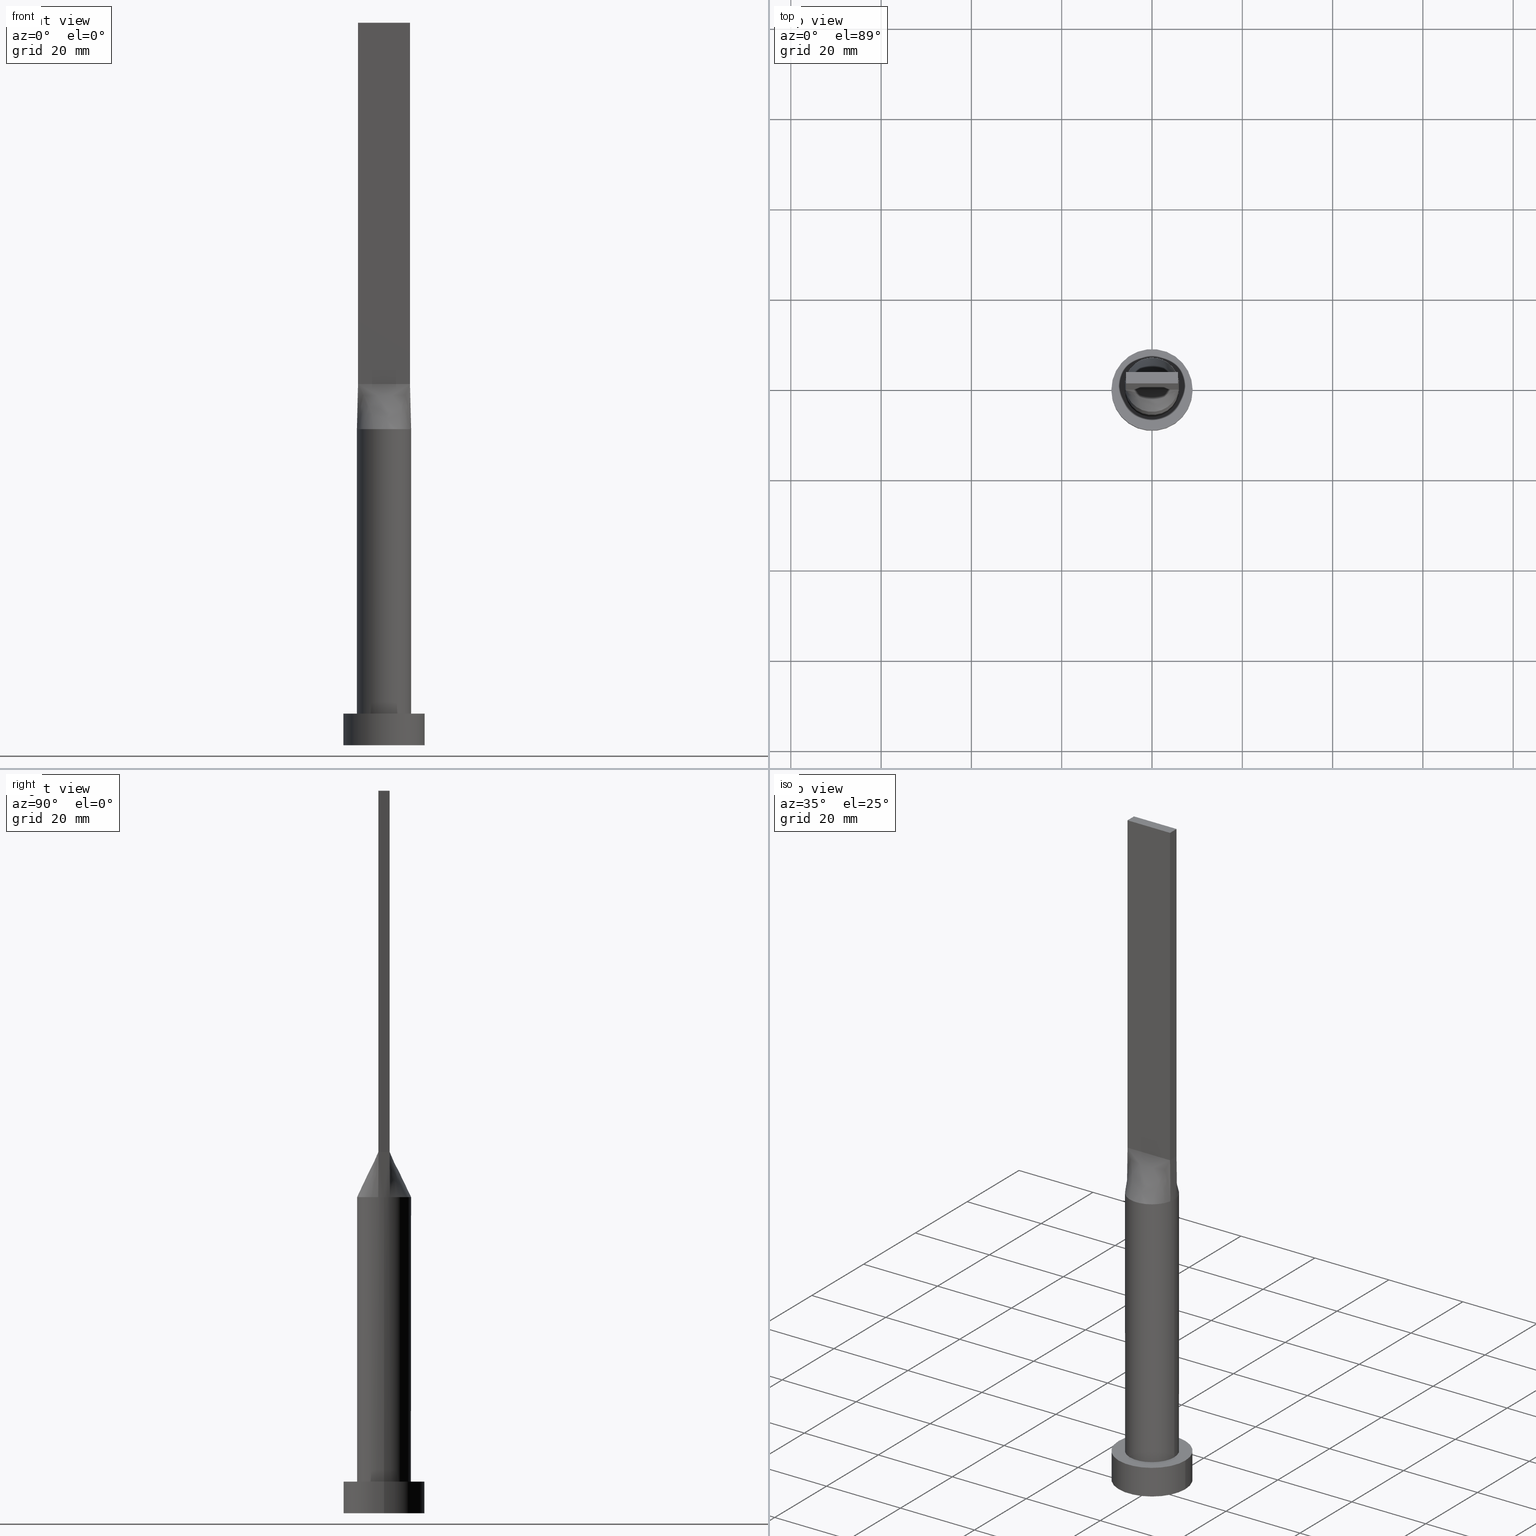
[diagram: canonical four-view strip — front | top / right | iso, engineering-drawing reading convention]
A machine part, canonical four-view strip (front | top / right | iso — engineering-drawing reading convention). The complete STEP part file that produces these views, byte-faithful:
ISO-10303-21;
HEADER;
FILE_DESCRIPTION (( 'STEP AP203' ),
    '1' );
FILE_NAME ('f43a.STEP',
    '2023-02-13T08:33:56',
    ( '' ),
    ( '' ),
    'SwSTEP 2.0',
    'SolidWorks 2019',
    '' );
FILE_SCHEMA (( 'CONFIG_CONTROL_DESIGN' ));
ENDSEC;

DATA;
#1 = CARTESIAN_POINT ( 'NONE',  ( -0.4029827085191223790, 5.999999999999998224, 70.00000000000000000 ) ) ;
#2 = ORIENTED_EDGE ( 'NONE', *, *, #207, .F. ) ;
#3 = APPROVAL_DATE_TIME ( #512, #476 ) ;
#4 = CARTESIAN_POINT ( 'NONE',  ( -4.659826596530312948, 3.842755878357679844, 69.99999999999998579 ) ) ;
#5 = APPROVAL_PERSON_ORGANIZATION ( #486, #489, #35 ) ;
#6 = CARTESIAN_POINT ( 'NONE',  ( -5.038190104264874236, 3.311355329404293446, 70.00000000000001421 ) ) ;
#7 = ADVANCED_FACE ( 'NONE', ( #343 ), #533, .F. ) ;
#8 = LINE ( 'NONE', #193, #594 ) ;
#9 = CYLINDRICAL_SURFACE ( 'NONE', #461, 9.000000000000000000 ) ;
#10 = CARTESIAN_POINT ( 'NONE',  ( 6.000000000000000888, 0.4297636735037115296, 69.99999999999998579 ) ) ;
#11 = ORIENTED_EDGE ( 'NONE', *, *, #219, .F. ) ;
#12 = FACE_OUTER_BOUND ( 'NONE', #76, .T. ) ;
#13 = ADVANCED_FACE ( 'NONE', ( #12 ), #200, .F. ) ;
#14 = CARTESIAN_POINT ( 'NONE',  ( 5.750000000000000000, -1.249999999999999778, 80.00000000000000000 ) ) ;
#15 = CARTESIAN_POINT ( 'NONE',  ( -6.000000000000000888, -3.688698462745542764E-16, 70.00000000000000000 ) ) ;
#16 = FACE_OUTER_BOUND ( 'NONE', #287, .T. ) ;
#17 = CARTESIAN_POINT ( 'NONE',  ( 0.000000000000000000, 0.000000000000000000, 7.000000000000000000 ) ) ;
#18 = ORIENTED_EDGE ( 'NONE', *, *, #288, .F. ) ;
#19 = CARTESIAN_POINT ( 'NONE',  ( 0.000000000000000000, 0.000000000000000000, 7.000000000000000000 ) ) ;
#20 =( NAMED_UNIT ( * ) PLANE_ANGLE_UNIT ( ) SI_UNIT ( $, .RADIAN. ) );
#21 = CARTESIAN_POINT ( 'NONE',  ( 6.000000000000000888, 7.347880794884120722E-16, 70.00000000000000000 ) ) ;
#22 = ADVANCED_FACE ( 'NONE', ( #432, #246 ), #563, .T. ) ;
#23 = FACE_OUTER_BOUND ( 'NONE', #138, .T. ) ;
#24 = VERTEX_POINT ( 'NONE', #566 ) ;
#25 = DIRECTION ( 'NONE',  ( 1.000000000000000000, -5.656706986880892860E-17, 0.000000000000000000 ) ) ;
#26 = CARTESIAN_POINT ( 'NONE',  ( -4.659826596530312948, 3.842755878357679844, 69.99999999999998579 ) ) ;
#27 = AXIS2_PLACEMENT_3D ( 'NONE', #105, #68, #206 ) ;
#28 = PERSON_AND_ORGANIZATION_ROLE ( 'design_owner' ) ;
#29 = CC_DESIGN_APPROVAL ( #489, ( #394 ) ) ;
#30 = DIRECTION ( 'NONE',  ( -0.000000000000000000, -0.000000000000000000, -1.000000000000000000 ) ) ;
#31 = DIRECTION ( 'NONE',  ( -1.000000000000000000, 5.656706986880892860E-17, 0.000000000000000000 ) ) ;
#32 = DIRECTION ( 'NONE',  ( 1.000000000000000000, 0.000000000000000000, 0.000000000000000000 ) ) ;
#33 = CARTESIAN_POINT ( 'NONE',  ( 5.863058183536806744, 1.274577865986262104, 70.00000000000000000 ) ) ;
#34 = CARTESIAN_POINT ( 'NONE',  ( -3.833333333333333481, 1.250000000000000222, 79.99999999999998579 ) ) ;
#35 = APPROVAL_ROLE ( '' ) ;
#36 = CARTESIAN_POINT ( 'NONE',  ( 5.038190104264874236, -3.311355329404293890, 70.00000000000002842 ) ) ;
#37 = CARTESIAN_POINT ( 'NONE',  ( -5.750000000000000000, 1.250000000000000222, 80.00000000000000000 ) ) ;
#38 = APPROVAL_STATUS ( 'not_yet_approved' ) ;
#39 = CARTESIAN_POINT ( 'NONE',  ( -5.750000000000000000, -0.4166666666666609675, 79.99999999999998579 ) ) ;
#40 = CARTESIAN_POINT ( 'NONE',  ( 4.791666666666666075, 1.250000000000000222, 79.99999999999998579 ) ) ;
#41 = CARTESIAN_POINT ( 'NONE',  ( -5.586898165904732316, 2.266054396544148197, 70.00000000000001421 ) ) ;
#42 = EDGE_CURVE ( 'NONE', #53, #136, #576, .T. ) ;
#43 = VECTOR ( 'NONE', #482, 1000.000000000000000 ) ;
#44 = CARTESIAN_POINT ( 'NONE',  ( -5.806529091768402928, -1.262288932993130386, 75.00000000000001421 ) ) ;
#45 = CARTESIAN_POINT ( 'NONE',  ( -1.966519853258819506, -5.681792876789066860, 70.00000000000002842 ) ) ;
#46 = CC_DESIGN_PERSON_AND_ORGANIZATION_ASSIGNMENT ( #473, #28, ( #508 ) ) ;
#47 = ORIENTED_EDGE ( 'NONE', *, *, #234, .T. ) ;
#48 = COORDINATED_UNIVERSAL_TIME_OFFSET ( 1, 0, .AHEAD. ) ;
#49 = CARTESIAN_POINT ( 'NONE',  ( 1.916666666666664076, 1.250000000000000222, 79.99999999999998579 ) ) ;
#50 = DIRECTION ( 'NONE',  ( 0.000000000000000000, 0.000000000000000000, 1.000000000000000000 ) ) ;
#51 = AXIS2_PLACEMENT_3D ( 'NONE', #262, #498, #353 ) ;
#52 = CARTESIAN_POINT ( 'NONE',  ( 0.000000000000000000, 0.000000000000000000, 70.00000000000000000 ) ) ;
#53 = VERTEX_POINT ( 'NONE', #471 ) ;
#54 = CARTESIAN_POINT ( 'NONE',  ( -5.750000000000000000, -1.249999999999999112, 160.0000000000000000 ) ) ;
#55 = CC_DESIGN_PERSON_AND_ORGANIZATION_ASSIGNMENT ( #319, #302, ( #575 ) ) ;
#56 = CARTESIAN_POINT ( 'NONE',  ( 1.587717880441007479, 5.799853445840305710, 69.99999999999998579 ) ) ;
#57 = VECTOR ( 'NONE', #552, 1000.000000000000000 ) ;
#58 = CARTESIAN_POINT ( 'NONE',  ( -5.863058287509749888, 1.274577880478287017, 70.00000000000000000 ) ) ;
#59 = ORIENTED_EDGE ( 'NONE', *, *, #64, .T. ) ;
#60 = CARTESIAN_POINT ( 'NONE',  ( 5.863058287509796074, -1.274577880478293901, 70.00000000000000000 ) ) ;
#61 = B_SPLINE_SURFACE_WITH_KNOTS ( 'NONE', 3, 1, ( 
 ( #33, #169 ),
 ( #545, #395 ),
 ( #221, #40 ),
 ( #585, #129 ),
 ( #349, #170 ),
 ( #311, #88 ),
 ( #268, #49 ),
 ( #406, #398 ),
 ( #597, #320 ),
 ( #592, #180 ),
 ( #139, #506 ),
 ( #176, #75 ),
 ( #354, #307 ),
 ( #70, #440 ),
 ( #161, #530 ),
 ( #113, #296 ),
 ( #491, #479 ),
 ( #26, #213 ),
 ( #386, #34 ),
 ( #41, #579 ),
 ( #166, #345 ),
 ( #301, #37 ) ),
 .UNSPECIFIED., .F., .F., .F.,
 ( 4, 2, 2, 2, 2, 2, 2, 2, 2, 2, 4 ),
 ( 2, 2 ),
 ( 0.000000000000000000, 0.1249999999999999722, 0.2499999999999999445, 0.3749999999999999445, 0.4374999999999999445, 0.4999999999999998890, 0.5624999999999998890, 0.6249999999999998890, 0.7499999999999997780, 0.8749999999999998890, 1.000000000000000000 ),
 ( 0.000000000000000000, 1.000000000000000000 ),
 .UNSPECIFIED. ) ;
#62 = APPROVAL_STATUS ( 'not_yet_approved' ) ;
#63 = ORIENTED_EDGE ( 'NONE', *, *, #463, .T. ) ;
#64 = EDGE_CURVE ( 'NONE', #447, #131, #66, .T. ) ;
#65 = CARTESIAN_POINT ( 'NONE',  ( 5.750000000000000000, 0.4166666666666690721, 79.99999999999998579 ) ) ;
#66 = CIRCLE ( 'NONE', #417, 6.000000000000000888 ) ;
#67 = APPROVAL_PERSON_ORGANIZATION ( #128, #476, #493 ) ;
#68 = DIRECTION ( 'NONE',  ( 0.000000000000000000, 0.000000000000000000, 1.000000000000000000 ) ) ;
#69 = ORIENTED_EDGE ( 'NONE', *, *, #242, .F. ) ;
#70 = CARTESIAN_POINT ( 'NONE',  ( -1.587717880441007035, 5.799853445840308375, 69.99999999999998579 ) ) ;
#71 = ADVANCED_FACE ( 'NONE', ( #334 ), #524, .F. ) ;
#72 = FACE_OUTER_BOUND ( 'NONE', #562, .T. ) ;
#73 = ORIENTED_EDGE ( 'NONE', *, *, #219, .T. ) ;
#74 = DIRECTION ( 'NONE',  ( 1.000000000000000000, 0.000000000000000000, 0.000000000000000000 ) ) ;
#75 = CARTESIAN_POINT ( 'NONE',  ( -0.2395833333333362847, 1.250000000000000222, 80.00000000000000000 ) ) ;
#76 = EDGE_LOOP ( 'NONE', ( #538, #560 ) ) ;
#77 = CARTESIAN_POINT ( 'NONE',  ( 5.806529091768402928, 1.262288932993131496, 75.00000000000001421 ) ) ;
#78 = AXIS2_PLACEMENT_3D ( 'NONE', #195, #248, #468 ) ;
#79 = COORDINATED_UNIVERSAL_TIME_OFFSET ( 1, 0, .AHEAD. ) ;
#80 = CARTESIAN_POINT ( 'NONE',  ( 5.806529091768402928, -1.262288932993132828, 75.00000000000001421 ) ) ;
#81 = PLANE ( 'NONE',  #315 ) ;
#82 = ORIENTED_EDGE ( 'NONE', *, *, #143, .F. ) ;
#83 = DIRECTION ( 'NONE',  ( -0.01130506171853812650, -0.002457622112725661723, 0.9999330755971076456 ) ) ;
#84 = CALENDAR_DATE ( 2023, 13, 2 ) ;
#85 = EDGE_CURVE ( 'NONE', #283, #90, #261, .T. ) ;
#86 = CARTESIAN_POINT ( 'NONE',  ( -6.000000000000000888, 0.4297636735037124733, 69.99999999999998579 ) ) ;
#87 = ORIENTED_EDGE ( 'NONE', *, *, #551, .T. ) ;
#88 = CARTESIAN_POINT ( 'NONE',  ( 2.395833333333330817, 1.250000000000000222, 79.99999999999998579 ) ) ;
#89 = EDGE_CURVE ( 'NONE', #381, #53, #393, .T. ) ;
#90 = VERTEX_POINT ( 'NONE', #106 ) ;
#91 = CALENDAR_DATE ( 2023, 13, 2 ) ;
#92 = SHAPE_DEFINITION_REPRESENTATION ( #522, #427 ) ;
#93 = FACE_OUTER_BOUND ( 'NONE', #510, .T. ) ;
#94 = VECTOR ( 'NONE', #559, 1000.000000000000000 ) ;
#95 = DIRECTION ( 'NONE',  ( -1.000000000000000000, 0.000000000000000000, 0.000000000000000000 ) ) ;
#96 = CARTESIAN_POINT ( 'NONE',  ( 1.587717880441006368, -5.799853445840308375, 69.99999999999998579 ) ) ;
#97 = APPROVAL ( #62, 'NEUR�EN�' ) ;
#98 = DIRECTION ( 'NONE',  ( 1.000000000000000000, 0.000000000000000000, 0.000000000000000000 ) ) ;
#99 = DIRECTION ( 'NONE',  ( -0.000000000000000000, -0.000000000000000000, -1.000000000000000000 ) ) ;
#100 = VECTOR ( 'NONE', #25, 1000.000000000000000 ) ;
#101 = AXIS2_PLACEMENT_3D ( 'NONE', #531, #425, #430 ) ;
#102 = CARTESIAN_POINT ( 'NONE',  ( 5.586898165904734093, 2.266054396544147309, 70.00000000000000000 ) ) ;
#103 = EDGE_CURVE ( 'NONE', #275, #291, #424, .T. ) ;
#104 = CARTESIAN_POINT ( 'NONE',  ( 5.750000000000000000, 0.8333333333333350357, 79.99999999999998579 ) ) ;
#105 = CARTESIAN_POINT ( 'NONE',  ( 0.000000000000000000, 0.000000000000000000, 0.000000000000000000 ) ) ;
#106 = CARTESIAN_POINT ( 'NONE',  ( 6.000000000000000888, 7.347880794884120722E-16, 7.000000000000000000 ) ) ;
#107 = CARTESIAN_POINT ( 'NONE',  ( 5.750000000000000000, 1.250000000000000222, 80.00000000000000000 ) ) ;
#108 = DIRECTION ( 'NONE',  ( -0.01130506171853803803, 0.002457622112726073286, 0.9999330755971076456 ) ) ;
#109 = AXIS2_PLACEMENT_3D ( 'NONE', #518, #99, #408 ) ;
#110 = DIRECTION ( 'NONE',  ( 0.000000000000000000, -0.000000000000000000, -1.000000000000000000 ) ) ;
#111 = APPLICATION_PROTOCOL_DEFINITION ( 'international standard', 'config_control_design', 1994, #203 ) ;
#112 = LINE ( 'NONE', #21, #43 ) ;
#113 = CARTESIAN_POINT ( 'NONE',  ( -3.037647739454304663, 5.231880992812857123, 70.00000000000002842 ) ) ;
#114 = EDGE_CURVE ( 'NONE', #24, #275, #254, .T. ) ;
#115 = PERSON_AND_ORGANIZATION ( #336, #496 ) ;
#116 = DIRECTION ( 'NONE',  ( 5.656706986880892860E-17, 1.000000000000000000, -0.000000000000000000 ) ) ;
#117 = VERTEX_POINT ( 'NONE', #429 ) ;
#118 = CARTESIAN_POINT ( 'NONE',  ( 0.000000000000000000, 0.000000000000000000, 70.00000000000000000 ) ) ;
#119 = DIRECTION ( 'NONE',  ( -0.000000000000000000, -0.000000000000000000, -1.000000000000000000 ) ) ;
#120 = DIRECTION ( 'NONE',  ( 0.000000000000000000, 0.000000000000000000, 1.000000000000000000 ) ) ;
#121 = CARTESIAN_POINT ( 'NONE',  ( -4.659826596530313836, -3.842755878357677179, 70.00000000000000000 ) ) ;
#122 = ORIENTED_EDGE ( 'NONE', *, *, #457, .F. ) ;
#123 = CARTESIAN_POINT ( 'NONE',  ( -5.750000000000000000, -1.249999999999999112, 160.0000000000000000 ) ) ;
#124 = CIRCLE ( 'NONE', #452, 6.000000000000000888 ) ;
#125 = ADVANCED_FACE ( 'NONE', ( #16 ), #9, .T. ) ;
#126 = CARTESIAN_POINT ( 'NONE',  ( -6.000000000000000888, -0.4297636735037110300, 69.99999999999998579 ) ) ;
#127 = CARTESIAN_POINT ( 'NONE',  ( 5.863058183536806744, 1.274577865986262326, 70.00000000000000000 ) ) ;
#128 = PERSON_AND_ORGANIZATION ( #336, #496 ) ;
#129 = CARTESIAN_POINT ( 'NONE',  ( 3.833333333333331705, 1.250000000000000222, 79.99999999999998579 ) ) ;
#130 = CARTESIAN_POINT ( 'NONE',  ( 0.9583333333333325932, -1.249999999999999556, 79.99999999999998579 ) ) ;
#131 = VERTEX_POINT ( 'NONE', #60 ) ;
#132 = CARTESIAN_POINT ( 'NONE',  ( -5.750000000000000000, -1.249999999999999334, 80.00000000000000000 ) ) ;
#133 = ADVANCED_FACE ( 'NONE', ( #373 ), #61, .T. ) ;
#134 = AXIS2_PLACEMENT_3D ( 'NONE', #141, #145, #95 ) ;
#135 = CC_DESIGN_SECURITY_CLASSIFICATION ( #394, ( #575 ) ) ;
#136 = VERTEX_POINT ( 'NONE', #485 ) ;
#137 = B_SPLINE_SURFACE_WITH_KNOTS ( 'NONE', 3, 1, ( 
 ( #571, #346 ),
 ( #253, #216 ),
 ( #294, #581 ),
 ( #569, #537 ),
 ( #121, #204 ),
 ( #378, #163 ),
 ( #342, #272 ),
 ( #45, #358 ),
 ( #409, #600 ),
 ( #500, #515 ),
 ( #509, #399 ),
 ( #503, #454 ),
 ( #364, #236 ),
 ( #96, #130 ),
 ( #314, #549 ),
 ( #263, #439 ),
 ( #218, #265 ),
 ( #389, #443 ),
 ( #36, #577 ),
 ( #420, #147 ),
 ( #565, #333 ),
 ( #480, #14 ) ),
 .UNSPECIFIED., .F., .F., .F.,
 ( 4, 2, 2, 2, 2, 2, 2, 2, 2, 2, 4 ),
 ( 2, 2 ),
 ( 0.000000000000000000, 0.1250000000000000278, 0.2500000000000000555, 0.3750000000000001110, 0.4375000000000000555, 0.5000000000000000000, 0.5625000000000000000, 0.6250000000000000000, 0.7499999999999998890, 0.8750000000000000000, 1.000000000000000000 ),
 ( 0.000000000000000000, 1.000000000000000000 ),
 .UNSPECIFIED. ) ;
#138 = EDGE_LOOP ( 'NONE', ( #164, #483, #186, #441 ) ) ;
#139 = CARTESIAN_POINT ( 'NONE',  ( 0.4029827085191226566, 5.999999999999999112, 70.00000000000000000 ) ) ;
#140 = CARTESIAN_POINT ( 'NONE',  ( -5.750000000000000000, 1.250000000000000222, 160.0000000000000000 ) ) ;
#141 = CARTESIAN_POINT ( 'NONE',  ( 0.000000000000000000, 0.000000000000000000, 70.00000000000000000 ) ) ;
#142 = AXIS2_PLACEMENT_3D ( 'NONE', #19, #292, #572 ) ;
#143 = EDGE_CURVE ( 'NONE', #153, #258, #540, .T. ) ;
#144 = ORIENTED_EDGE ( 'NONE', *, *, #340, .F. ) ;
#145 = DIRECTION ( 'NONE',  ( -0.000000000000000000, -0.000000000000000000, -1.000000000000000000 ) ) ;
#146 = CARTESIAN_POINT ( 'NONE',  ( -5.586898165904732316, 2.266054396544148197, 70.00000000000001421 ) ) ;
#147 = CARTESIAN_POINT ( 'NONE',  ( 4.791666666666666075, -1.249999999999999778, 79.99999999999998579 ) ) ;
#148 = EDGE_CURVE ( 'NONE', #501, #275, #583, .T. ) ;
#149 = CARTESIAN_POINT ( 'NONE',  ( 3.037647739454305995, 5.231880992812856235, 70.00000000000001421 ) ) ;
#150 = CIRCLE ( 'NONE', #367, 6.000000000000000888 ) ;
#151 = ORIENTED_EDGE ( 'NONE', *, *, #192, .T. ) ;
#152 = MECHANICAL_CONTEXT ( 'NONE', #460, 'mechanical' ) ;
#153 = VERTEX_POINT ( 'NONE', #127 ) ;
#154 = DIRECTION ( 'NONE',  ( -0.000000000000000000, -0.000000000000000000, -1.000000000000000000 ) ) ;
#155 = LINE ( 'NONE', #337, #350 ) ;
#156 = ORIENTED_EDGE ( 'NONE', *, *, #415, .T. ) ;
#157 = CARTESIAN_POINT ( 'NONE',  ( -5.750000000000000000, -1.249999999999999112, 80.00000000000000000 ) ) ;
#158 = CC_DESIGN_PERSON_AND_ORGANIZATION_ASSIGNMENT ( #237, #456, ( #536 ) ) ;
#159 = AXIS2_PLACEMENT_3D ( 'NONE', #160, #209, #110 ) ;
#160 = CARTESIAN_POINT ( 'NONE',  ( 5.750000000000000000, 1.250000000000000222, 160.0000000000000000 ) ) ;
#161 = CARTESIAN_POINT ( 'NONE',  ( -1.966519853258818173, 5.681792876789067748, 70.00000000000002842 ) ) ;
#162 = CARTESIAN_POINT ( 'NONE',  ( 5.750000000000000000, -1.249999999999999778, 80.00000000000000000 ) ) ;
#163 = CARTESIAN_POINT ( 'NONE',  ( -2.395833333333333037, -1.249999999999999112, 79.99999999999998579 ) ) ;
#164 = ORIENTED_EDGE ( 'NONE', *, *, #103, .T. ) ;
#165 = DIRECTION ( 'NONE',  ( 0.000000000000000000, -1.000000000000000000, 0.000000000000000000 ) ) ;
#166 = CARTESIAN_POINT ( 'NONE',  ( -5.759267569818392829, 1.752014689090956256, 70.00000000000000000 ) ) ;
#167 = CARTESIAN_POINT ( 'NONE',  ( -5.750000000000000000, 1.250000000000000222, 80.00000000000000000 ) ) ;
#168 = ORIENTED_EDGE ( 'NONE', *, *, #400, .F. ) ;
#169 = CARTESIAN_POINT ( 'NONE',  ( 5.750000000000000000, 1.250000000000000222, 80.00000000000000000 ) ) ;
#170 = CARTESIAN_POINT ( 'NONE',  ( 3.354166666666665186, 1.250000000000000222, 79.99999999999998579 ) ) ;
#171 = DIRECTION ( 'NONE',  ( -0.000000000000000000, -0.000000000000000000, -1.000000000000000000 ) ) ;
#172 = VECTOR ( 'NONE', #368, 1000.000000000000114 ) ;
#173 = APPROVAL_PERSON_ORGANIZATION ( #115, #97, #247 ) ;
#174 = DIRECTION ( 'NONE',  ( 1.000000000000000000, 0.000000000000000000, 0.000000000000000000 ) ) ;
#175 = EDGE_LOOP ( 'NONE', ( #467, #322 ) ) ;
#176 = CARTESIAN_POINT ( 'NONE',  ( -0.4029827085191223790, 5.999999999999998224, 70.00000000000000000 ) ) ;
#177 = CIRCLE ( 'NONE', #27, 9.000000000000000000 ) ;
#178 = ORIENTED_EDGE ( 'NONE', *, *, #85, .T. ) ;
#179 = PERSON_AND_ORGANIZATION ( #336, #496 ) ;
#180 = CARTESIAN_POINT ( 'NONE',  ( 0.4791666666666637986, 1.250000000000000222, 79.99999999999998579 ) ) ;
#181 = LINE ( 'NONE', #361, #445 ) ;
#182 = EDGE_LOOP ( 'NONE', ( #455, #365, #264, #82 ) ) ;
#183 = SECURITY_CLASSIFICATION_LEVEL ( 'unclassified' ) ;
#184 = ADVANCED_FACE ( 'NONE', ( #492 ), #317, .T. ) ;
#185 = CARTESIAN_POINT ( 'NONE',  ( 5.750000000000000000, -1.249999999999999778, 160.0000000000000000 ) ) ;
#186 = ORIENTED_EDGE ( 'NONE', *, *, #463, .F. ) ;
#187 = DATE_AND_TIME ( #274, #199 ) ;
#188 = CARTESIAN_POINT ( 'NONE',  ( 0.000000000000000000, 0.000000000000000000, 70.00000000000000000 ) ) ;
#189 = VECTOR ( 'NONE', #214, 1000.000000000000000 ) ;
#190 = LOCAL_TIME ( 9, 33, 56.00000000000000000, #505 ) ;
#191 = CARTESIAN_POINT ( 'NONE',  ( -5.863058287509749888, 1.274577880478287017, 70.00000000000000000 ) ) ;
#192 = EDGE_CURVE ( 'NONE', #464, #153, #224, .T. ) ;
#193 = CARTESIAN_POINT ( 'NONE',  ( 5.750000000000000000, 1.250000000000000222, 80.00000000000000000 ) ) ;
#194 = ORIENTED_EDGE ( 'NONE', *, *, #114, .F. ) ;
#195 = CARTESIAN_POINT ( 'NONE',  ( 0.000000000000000000, 0.000000000000000000, 0.000000000000000000 ) ) ;
#196 = FACE_OUTER_BOUND ( 'NONE', #208, .T. ) ;
#197 = VECTOR ( 'NONE', #387, 1000.000000000000000 ) ;
#198 = ORIENTED_EDGE ( 'NONE', *, *, #568, .F. ) ;
#199 = LOCAL_TIME ( 9, 33, 56.00000000000000000, #79 ) ;
#200 = PLANE ( 'NONE',  #78 ) ;
#201 = CARTESIAN_POINT ( 'NONE',  ( 5.750000000000000000, -0.4166666666666642427, 79.99999999999998579 ) ) ;
#202 = DIRECTION ( 'NONE',  ( -1.000000000000000000, 0.000000000000000000, 0.000000000000000000 ) ) ;
#203 = APPLICATION_CONTEXT ( 'configuration controlled 3d designs of mechanical parts and assemblies' ) ;
#204 = CARTESIAN_POINT ( 'NONE',  ( -3.354166666666666963, -1.249999999999999112, 79.99999999999998579 ) ) ;
#205 = DIRECTION ( 'NONE',  ( 1.000000000000000000, 0.000000000000000000, -0.000000000000000000 ) ) ;
#206 = DIRECTION ( 'NONE',  ( 1.000000000000000000, 0.000000000000000000, 0.000000000000000000 ) ) ;
#207 = EDGE_CURVE ( 'NONE', #53, #381, #407, .T. ) ;
#208 = EDGE_LOOP ( 'NONE', ( #372, #151, #267, #410, #401 ) ) ;
#209 = DIRECTION ( 'NONE',  ( 0.000000000000000000, -1.000000000000000000, 0.000000000000000000 ) ) ;
#210 = ORIENTED_EDGE ( 'NONE', *, *, #449, .F. ) ;
#211 = VECTOR ( 'NONE', #165, 1000.000000000000000 ) ;
#212 = CARTESIAN_POINT ( 'NONE',  ( -9.000000000000000000, 0.000000000000000000, 7.000000000000000000 ) ) ;
#213 = CARTESIAN_POINT ( 'NONE',  ( -3.354166666666666963, 1.250000000000000222, 79.99999999999998579 ) ) ;
#214 = DIRECTION ( 'NONE',  ( 0.000000000000000000, -1.000000000000000000, 0.000000000000000000 ) ) ;
#215 = CARTESIAN_POINT ( 'NONE',  ( -6.000000000000000888, 0.000000000000000000, 7.000000000000000000 ) ) ;
#216 = CARTESIAN_POINT ( 'NONE',  ( -5.270833333333333925, -1.249999999999999112, 80.00000000000000000 ) ) ;
#217 = ORIENTED_EDGE ( 'NONE', *, *, #547, .T. ) ;
#218 = CARTESIAN_POINT ( 'NONE',  ( 3.660567483996338023, -4.804269179125219225, 70.00000000000001421 ) ) ;
#219 = EDGE_CURVE ( 'NONE', #275, #447, #544, .T. ) ;
#220 = CARTESIAN_POINT ( 'NONE',  ( 0.000000000000000000, 0.000000000000000000, 70.00000000000000000 ) ) ;
#221 = CARTESIAN_POINT ( 'NONE',  ( 5.586898165904734093, 2.266054396544147309, 70.00000000000000000 ) ) ;
#222 = DIRECTION ( 'NONE',  ( 0.000000000000000000, 0.000000000000000000, 1.000000000000000000 ) ) ;
#223 = CARTESIAN_POINT ( 'NONE',  ( -5.863058183536806744, 1.274577865986262770, 70.00000000000000000 ) ) ;
#224 = CIRCLE ( 'NONE', #241, 6.000000000000000888 ) ;
#225 = ORIENTED_EDGE ( 'NONE', *, *, #103, .F. ) ;
#226 = DIRECTION ( 'NONE',  ( -1.000000000000000000, 0.000000000000000000, 0.000000000000000000 ) ) ;
#227 = EDGE_CURVE ( 'NONE', #117, #419, #390, .T. ) ;
#228 = ORIENTED_EDGE ( 'NONE', *, *, #227, .F. ) ;
#229 = DATE_AND_TIME ( #91, #446 ) ;
#230 = VECTOR ( 'NONE', #591, 1000.000000000000000 ) ;
#231 = DIRECTION ( 'NONE',  ( 1.000000000000000000, 0.000000000000000000, 0.000000000000000000 ) ) ;
#232 = ORIENTED_EDGE ( 'NONE', *, *, #356, .F. ) ;
#233 = PERSON_AND_ORGANIZATION ( #336, #496 ) ;
#234 = EDGE_CURVE ( 'NONE', #497, #136, #269, .T. ) ;
#235 = CARTESIAN_POINT ( 'NONE',  ( -5.806529091768402928, 1.262288932993132606, 75.00000000000001421 ) ) ;
#236 = CARTESIAN_POINT ( 'NONE',  ( 0.4791666666666659635, -1.249999999999999556, 79.99999999999998579 ) ) ;
#237 = PERSON_AND_ORGANIZATION ( #336, #496 ) ;
#238 = MANIFOLD_SOLID_BREP ( 'P�idat vysunut�m5', #338 ) ;
#239 = FACE_OUTER_BOUND ( 'NONE', #277, .T. ) ;
#240 = CARTESIAN_POINT ( 'NONE',  ( 1.966519853258819062, 5.681792876789066860, 70.00000000000000000 ) ) ;
#241 = AXIS2_PLACEMENT_3D ( 'NONE', #220, #222, #174 ) ;
#242 = EDGE_CURVE ( 'NONE', #117, #258, #539, .T. ) ;
#243 = ORIENTED_EDGE ( 'NONE', *, *, #298, .T. ) ;
#244 = PLANE ( 'NONE',  #305 ) ;
#245 = EDGE_LOOP ( 'NONE', ( #450, #435, #347, #232, #404, #178 ) ) ;
#246 = FACE_OUTER_BOUND ( 'NONE', #546, .T. ) ;
#247 = APPROVAL_ROLE ( '' ) ;
#248 = DIRECTION ( 'NONE',  ( 0.000000000000000000, 0.000000000000000000, 1.000000000000000000 ) ) ;
#249 = DIRECTION ( 'NONE',  ( 0.000000000000000000, 0.000000000000000000, 1.000000000000000000 ) ) ;
#250 = DIRECTION ( 'NONE',  ( -0.000000000000000000, -0.000000000000000000, -1.000000000000000000 ) ) ;
#251 = AXIS2_PLACEMENT_3D ( 'NONE', #52, #514, #231 ) ;
#252 =( GEOMETRIC_REPRESENTATION_CONTEXT ( 3 ) GLOBAL_UNCERTAINTY_ASSIGNED_CONTEXT ( ( #405 ) ) GLOBAL_UNIT_ASSIGNED_CONTEXT ( ( #377, #20, #469 ) ) REPRESENTATION_CONTEXT ( 'NONE', 'WORKASPACE' ) );
#253 = CARTESIAN_POINT ( 'NONE',  ( -5.759267569818394605, -1.752014689090954480, 69.99999999999998579 ) ) ;
#254 = LINE ( 'NONE', #385, #211 ) ;
#255 = EDGE_CURVE ( 'NONE', #131, #464, #290, .T. ) ;
#256 = CARTESIAN_POINT ( 'NONE',  ( 0.000000000000000000, 0.000000000000000000, 160.0000000000000000 ) ) ;
#257 = CARTESIAN_POINT ( 'NONE',  ( -5.750000000000000000, 1.250000000000000222, 160.0000000000000000 ) ) ;
#258 = VERTEX_POINT ( 'NONE', #543 ) ;
#259 = APPLICATION_PROTOCOL_DEFINITION ( 'international standard', 'config_control_design', 1994, #460 ) ;
#260 = EDGE_CURVE ( 'NONE', #464, #90, #112, .T. ) ;
#261 = CIRCLE ( 'NONE', #142, 6.000000000000000888 ) ;
#262 = CARTESIAN_POINT ( 'NONE',  ( 0.000000000000000000, 0.000000000000000000, 7.000000000000000000 ) ) ;
#263 = CARTESIAN_POINT ( 'NONE',  ( 3.037647739454303331, -5.231880992812857123, 70.00000000000002842 ) ) ;
#264 = ORIENTED_EDGE ( 'NONE', *, *, #558, .F. ) ;
#265 = CARTESIAN_POINT ( 'NONE',  ( 2.395833333333331705, -1.249999999999999778, 79.99999999999998579 ) ) ;
#266 = CARTESIAN_POINT ( 'NONE',  ( -5.750000000000000000, 0.4166666666666722363, 79.99999999999998579 ) ) ;
#267 = ORIENTED_EDGE ( 'NONE', *, *, #143, .T. ) ;
#268 = CARTESIAN_POINT ( 'NONE',  ( 3.037647739454305995, 5.231880992812856235, 70.00000000000001421 ) ) ;
#269 = CIRCLE ( 'NONE', #555, 9.000000000000000000 ) ;
#270 = ADVANCED_FACE ( 'NONE', ( #72 ), #532, .T. ) ;
#271 = ORIENTED_EDGE ( 'NONE', *, *, #400, .T. ) ;
#272 = CARTESIAN_POINT ( 'NONE',  ( -1.916666666666666075, -1.249999999999999334, 79.99999999999998579 ) ) ;
#273 = ORIENTED_EDGE ( 'NONE', *, *, #558, .T. ) ;
#274 = CALENDAR_DATE ( 2023, 13, 2 ) ;
#275 = VERTEX_POINT ( 'NONE', #289 ) ;
#276 = LINE ( 'NONE', #412, #57 ) ;
#277 = EDGE_LOOP ( 'NONE', ( #593, #69, #210, #156 ) ) ;
#278 = PERSON_AND_ORGANIZATION_ROLE ( 'design_supplier' ) ;
#279 = CARTESIAN_POINT ( 'NONE',  ( 4.659826596530313836, 3.842755878357678068, 70.00000000000001421 ) ) ;
#280 = CARTESIAN_POINT ( 'NONE',  ( 5.750000000000000000, -1.249999999999999778, 160.0000000000000000 ) ) ;
#281 = LINE ( 'NONE', #235, #172 ) ;
#282 = VECTOR ( 'NONE', #83, 1000.000000000000114 ) ;
#283 = VERTEX_POINT ( 'NONE', #215 ) ;
#284 = CARTESIAN_POINT ( 'NONE',  ( -0.8058840496048931268, 5.959001506938069070, 70.00000000000000000 ) ) ;
#285 = CARTESIAN_POINT ( 'NONE',  ( 0.000000000000000000, 0.000000000000000000, 7.000000000000000000 ) ) ;
#286 = CARTESIAN_POINT ( 'NONE',  ( -5.750000000000000000, -1.249999999999999112, 160.0000000000000000 ) ) ;
#287 = EDGE_LOOP ( 'NONE', ( #396, #582, #47, #595 ) ) ;
#288 = EDGE_CURVE ( 'NONE', #553, #283, #303, .T. ) ;
#289 = CARTESIAN_POINT ( 'NONE',  ( -5.750000000000000000, -1.249999999999999112, 80.00000000000000000 ) ) ;
#290 = CIRCLE ( 'NONE', #527, 6.000000000000000888 ) ;
#291 = VERTEX_POINT ( 'NONE', #525 ) ;
#292 = DIRECTION ( 'NONE',  ( 0.000000000000000000, 0.000000000000000000, 1.000000000000000000 ) ) ;
#293 = CARTESIAN_POINT ( 'NONE',  ( -5.750000000000000000, 1.250000000000000222, 160.0000000000000000 ) ) ;
#294 = CARTESIAN_POINT ( 'NONE',  ( -5.586898165904734093, -2.266054396544145533, 70.00000000000001421 ) ) ;
#295 = DIRECTION ( 'NONE',  ( 0.000000000000000000, 0.000000000000000000, 1.000000000000000000 ) ) ;
#296 = CARTESIAN_POINT ( 'NONE',  ( -1.916666666666668073, 1.250000000000000222, 80.00000000000000000 ) ) ;
#297 = LINE ( 'NONE', #257, #189 ) ;
#298 = EDGE_CURVE ( 'NONE', #131, #291, #474, .T. ) ;
#299 = ORIENTED_EDGE ( 'NONE', *, *, #227, .T. ) ;
#300 = DIRECTION ( 'NONE',  ( -1.000000000000000000, 0.000000000000000000, 0.000000000000000000 ) ) ;
#301 = CARTESIAN_POINT ( 'NONE',  ( -5.863058183536805856, 1.274577865986265435, 70.00000000000000000 ) ) ;
#302 = PERSON_AND_ORGANIZATION_ROLE ( 'creator' ) ;
#303 = LINE ( 'NONE', #487, #488 ) ;
#304 = EDGE_LOOP ( 'NONE', ( #309, #490, #523, #504 ) ) ;
#305 = AXIS2_PLACEMENT_3D ( 'NONE', #327, #341, #383 ) ;
#306 = DIRECTION ( 'NONE',  ( 1.000000000000000000, -9.769962616701377556E-15, 0.000000000000000000 ) ) ;
#307 = CARTESIAN_POINT ( 'NONE',  ( -0.4791666666666691832, 1.250000000000000222, 80.00000000000000000 ) ) ;
#308 = CALENDAR_DATE ( 2023, 13, 2 ) ;
#309 = ORIENTED_EDGE ( 'NONE', *, *, #114, .T. ) ;
#310 = CARTESIAN_POINT ( 'NONE',  ( 5.750000000000000000, 1.250000000000000222, 160.0000000000000000 ) ) ;
#311 = CARTESIAN_POINT ( 'NONE',  ( 3.660567483996337579, 4.804269179125218336, 70.00000000000000000 ) ) ;
#312 = APPROVAL_STATUS ( 'not_yet_approved' ) ;
#313 = EDGE_CURVE ( 'NONE', #136, #497, #177, .T. ) ;
#314 = CARTESIAN_POINT ( 'NONE',  ( 1.966519853258817729, -5.681792876789067748, 70.00000000000002842 ) ) ;
#315 = AXIS2_PLACEMENT_3D ( 'NONE', #286, #116, #31 ) ;
#316 = LOCAL_TIME ( 9, 33, 56.00000000000000000, #48 ) ;
#317 = B_SPLINE_SURFACE_WITH_KNOTS ( 'NONE', 3, 1, ( 
 ( #223, #484 ),
 ( #348, #442 ),
 ( #86, #266 ),
 ( #126, #39 ),
 ( #351, #397 ),
 ( #588, #132 ) ),
 .UNSPECIFIED., .F., .F., .F.,
 ( 4, 2, 4 ),
 ( 2, 2 ),
 ( 0.000000000000000000, 0.5000000000000000000, 1.000000000000000000 ),
 ( 0.000000000000000000, 1.000000000000000000 ),
 .UNSPECIFIED. ) ;
#318 = ADVANCED_FACE ( 'NONE', ( #23 ), #81, .F. ) ;
#319 = PERSON_AND_ORGANIZATION ( #336, #496 ) ;
#320 = CARTESIAN_POINT ( 'NONE',  ( 0.9583333333333305948, 1.250000000000000222, 79.99999999999998579 ) ) ;
#321 = CARTESIAN_POINT ( 'NONE',  ( 5.759267569818392829, 1.752014689090955590, 70.00000000000001421 ) ) ;
#322 = ORIENTED_EDGE ( 'NONE', *, *, #547, .F. ) ;
#323 = CALENDAR_DATE ( 2023, 13, 2 ) ;
#324 = AXIS2_PLACEMENT_3D ( 'NONE', #256, #120, #205 ) ;
#325 = LOCAL_TIME ( 9, 33, 56.00000000000000000, #375 ) ;
#326 = CARTESIAN_POINT ( 'NONE',  ( 5.863058183536806744, 1.274577865986262326, 70.00000000000000000 ) ) ;
#327 = CARTESIAN_POINT ( 'NONE',  ( 5.750000000000000000, -1.249999999999999778, 160.0000000000000000 ) ) ;
#328 = ADVANCED_FACE ( 'NONE', ( #475 ), #137, .T. ) ;
#329 = LINE ( 'NONE', #280, #94 ) ;
#330 = CARTESIAN_POINT ( 'NONE',  ( 3.660567483996337579, 4.804269179125218336, 70.00000000000000000 ) ) ;
#331 = CIRCLE ( 'NONE', #251, 6.000000000000000888 ) ;
#332 = DIRECTION ( 'NONE',  ( -0.000000000000000000, 0.000000000000000000, -1.000000000000000000 ) ) ;
#333 = CARTESIAN_POINT ( 'NONE',  ( 5.270833333333333037, -1.249999999999999778, 79.99999999999998579 ) ) ;
#334 = FACE_OUTER_BOUND ( 'NONE', #590, .T. ) ;
#335 = FACE_OUTER_BOUND ( 'NONE', #564, .T. ) ;
#336 = PERSON ( 'NEUR�EN�', 'NEUR�EN�', 'NEUR�EN�', ('NEUR�EN�'), ('NEUR�EN�'), ('NEUR�EN�') ) ;
#337 = CARTESIAN_POINT ( 'NONE',  ( 9.000000000000000000, 1.102182119232617714E-15, 7.000000000000000000 ) ) ;
#338 = CLOSED_SHELL ( 'NONE', ( #270, #125, #444, #22, #13, #499, #328, #578, #184, #133, #71, #7, #318, #517, #526 ) ) ;
#339 = DIRECTION ( 'NONE',  ( 0.000000000000000000, 0.000000000000000000, 1.000000000000000000 ) ) ;
#340 = EDGE_CURVE ( 'NONE', #381, #497, #155, .T. ) ;
#341 = DIRECTION ( 'NONE',  ( -1.000000000000000000, 0.000000000000000000, 0.000000000000000000 ) ) ;
#342 = CARTESIAN_POINT ( 'NONE',  ( -3.037647739454305551, -5.231880992812856235, 70.00000000000001421 ) ) ;
#343 = FACE_OUTER_BOUND ( 'NONE', #304, .T. ) ;
#344 = DIRECTION ( 'NONE',  ( 1.000000000000000000, 0.000000000000000000, 0.000000000000000000 ) ) ;
#345 = CARTESIAN_POINT ( 'NONE',  ( -5.270833333333333925, 1.250000000000000222, 79.99999999999998579 ) ) ;
#346 = CARTESIAN_POINT ( 'NONE',  ( -5.750000000000000000, -1.249999999999999112, 80.00000000000000000 ) ) ;
#347 = ORIENTED_EDGE ( 'NONE', *, *, #64, .F. ) ;
#348 = CARTESIAN_POINT ( 'NONE',  ( -5.953310891118034576, 0.8594154111126165452, 70.00000000000001421 ) ) ;
#349 = CARTESIAN_POINT ( 'NONE',  ( 4.659826596530313836, 3.842755878357678068, 70.00000000000001421 ) ) ;
#350 = VECTOR ( 'NONE', #402, 1000.000000000000000 ) ;
#351 = CARTESIAN_POINT ( 'NONE',  ( -5.953310891118033688, -0.8594154111126154350, 70.00000000000000000 ) ) ;
#352 = EDGE_CURVE ( 'NONE', #153, #413, #403, .T. ) ;
#353 = DIRECTION ( 'NONE',  ( 1.000000000000000000, 0.000000000000000000, 0.000000000000000000 ) ) ;
#354 = CARTESIAN_POINT ( 'NONE',  ( -0.8058840496048931268, 5.959001506938069070, 70.00000000000000000 ) ) ;
#355 = ORIENTED_EDGE ( 'NONE', *, *, #313, .T. ) ;
#356 = EDGE_CURVE ( 'NONE', #553, #447, #150, .T. ) ;
#357 = CC_DESIGN_APPROVAL ( #97, ( #536 ) ) ;
#358 = CARTESIAN_POINT ( 'NONE',  ( -1.197916666666666075, -1.249999999999999334, 79.99999999999998579 ) ) ;
#359 = VERTEX_POINT ( 'NONE', #185 ) ;
#360 = DATE_TIME_ROLE ( 'classification_date' ) ;
#361 = CARTESIAN_POINT ( 'NONE',  ( 5.750000000000000000, -1.249999999999999778, 160.0000000000000000 ) ) ;
#362 = ORIENTED_EDGE ( 'NONE', *, *, #356, .T. ) ;
#363 = CARTESIAN_POINT ( 'NONE',  ( -1.587717880441007035, 5.799853445840308375, 69.99999999999998579 ) ) ;
#364 = CARTESIAN_POINT ( 'NONE',  ( 0.8058840496048923496, -5.959001506938069070, 70.00000000000000000 ) ) ;
#365 = ORIENTED_EDGE ( 'NONE', *, *, #457, .T. ) ;
#366 = COORDINATED_UNIVERSAL_TIME_OFFSET ( 1, 0, .AHEAD. ) ;
#367 = AXIS2_PLACEMENT_3D ( 'NONE', #188, #50, #98 ) ;
#368 = DIRECTION ( 'NONE',  ( 0.01130506171853803803, -0.002457622112725964866, 0.9999330755971076456 ) ) ;
#369 = DIRECTION ( 'NONE',  ( -0.000000000000000000, 1.000000000000000000, -0.000000000000000000 ) ) ;
#370 = ORIENTED_EDGE ( 'NONE', *, *, #89, .T. ) ;
#371 = FACE_OUTER_BOUND ( 'NONE', #245, .T. ) ;
#372 = ORIENTED_EDGE ( 'NONE', *, *, #255, .T. ) ;
#373 = FACE_OUTER_BOUND ( 'NONE', #182, .T. ) ;
#374 = PRODUCT_RELATED_PRODUCT_CATEGORY ( 'detail', '', ( #508 ) ) ;
#375 = COORDINATED_UNIVERSAL_TIME_OFFSET ( 1, 0, .AHEAD. ) ;
#376 = VECTOR ( 'NONE', #154, 1000.000000000000000 ) ;
#377 =( LENGTH_UNIT ( ) NAMED_UNIT ( * ) SI_UNIT ( .MILLI., .METRE. ) );
#378 = CARTESIAN_POINT ( 'NONE',  ( -3.660567483996338911, -4.804269179125217448, 70.00000000000001421 ) ) ;
#379 = DIRECTION ( 'NONE',  ( 0.000000000000000000, 0.000000000000000000, 1.000000000000000000 ) ) ;
#380 = CARTESIAN_POINT ( 'NONE',  ( 6.000000000000000888, -0.4297636735037126954, 69.99999999999998579 ) ) ;
#381 = VERTEX_POINT ( 'NONE', #561 ) ;
#382 = CARTESIAN_POINT ( 'NONE',  ( 0.000000000000000000, 0.000000000000000000, 70.00000000000000000 ) ) ;
#383 = DIRECTION ( 'NONE',  ( 0.000000000000000000, 0.000000000000000000, 1.000000000000000000 ) ) ;
#384 = VECTOR ( 'NONE', #171, 1000.000000000000000 ) ;
#385 = CARTESIAN_POINT ( 'NONE',  ( -5.750000000000000000, 1.250000000000000222, 80.00000000000000000 ) ) ;
#386 = CARTESIAN_POINT ( 'NONE',  ( -5.038190104264874236, 3.311355329404293446, 70.00000000000001421 ) ) ;
#387 = DIRECTION ( 'NONE',  ( -1.000000000000000000, -0.000000000000000000, -0.000000000000000000 ) ) ;
#388 = DIRECTION ( 'NONE',  ( 1.000000000000000000, 0.000000000000000000, -0.000000000000000000 ) ) ;
#389 = CARTESIAN_POINT ( 'NONE',  ( 4.659826596530312948, -3.842755878357678512, 69.99999999999998579 ) ) ;
#390 = LINE ( 'NONE', #310, #548 ) ;
#391 = PERSON_AND_ORGANIZATION_ROLE ( 'classification_officer' ) ;
#392 = EDGE_CURVE ( 'NONE', #291, #258, #8, .T. ) ;
#393 = CIRCLE ( 'NONE', #495, 9.000000000000000000 ) ;
#394 = SECURITY_CLASSIFICATION ( '', '', #183 ) ;
#395 = CARTESIAN_POINT ( 'NONE',  ( 5.270833333333333037, 1.250000000000000222, 79.99999999999998579 ) ) ;
#396 = ORIENTED_EDGE ( 'NONE', *, *, #89, .F. ) ;
#397 = CARTESIAN_POINT ( 'NONE',  ( -5.750000000000000000, -0.8333333333333292625, 79.99999999999998579 ) ) ;
#398 = CARTESIAN_POINT ( 'NONE',  ( 1.197916666666664076, 1.250000000000000222, 79.99999999999998579 ) ) ;
#399 = CARTESIAN_POINT ( 'NONE',  ( -0.2395833333333338699, -1.249999999999999556, 79.99999999999998579 ) ) ;
#400 = EDGE_CURVE ( 'NONE', #413, #553, #331, .T. ) ;
#401 = ORIENTED_EDGE ( 'NONE', *, *, #298, .F. ) ;
#402 = DIRECTION ( 'NONE',  ( -0.000000000000000000, -0.000000000000000000, -1.000000000000000000 ) ) ;
#403 = B_SPLINE_CURVE_WITH_KNOTS ( 'NONE', 3,
 ( #326, #321, #102, #421, #279, #330, #149, #240, #56, #516, #520, #1, #284, #363, #418, #507, #416, #4, #6, #146, #453, #191 ),
 .UNSPECIFIED., .F., .F.,
 ( 4, 2, 2, 2, 2, 2, 2, 2, 2, 2, 4 ),
 ( 0.000000000000000000, 0.1249999999999999722, 0.2499999999999999445, 0.3749999999999999445, 0.4374999999999999445, 0.4999999999999998890, 0.5624999999999998890, 0.6249999999999998890, 0.7499999999999997780, 0.8749999999999998890, 1.000000000000000000 ),
 .UNSPECIFIED. ) ;
#404 = ORIENTED_EDGE ( 'NONE', *, *, #288, .T. ) ;
#405 = UNCERTAINTY_MEASURE_WITH_UNIT (LENGTH_MEASURE( 1.000000000000000082E-05 ), #377, 'distance_accuracy_value', 'NONE');
#406 = CARTESIAN_POINT ( 'NONE',  ( 1.966519853258819062, 5.681792876789066860, 70.00000000000000000 ) ) ;
#407 = CIRCLE ( 'NONE', #51, 9.000000000000000000 ) ;
#408 = DIRECTION ( 'NONE',  ( -1.000000000000000000, 0.000000000000000000, 0.000000000000000000 ) ) ;
#409 = CARTESIAN_POINT ( 'NONE',  ( -1.587717880441008589, -5.799853445840304822, 70.00000000000000000 ) ) ;
#410 = ORIENTED_EDGE ( 'NONE', *, *, #392, .F. ) ;
#411 = APPROVAL_DATE_TIME ( #187, #489 ) ;
#412 = CARTESIAN_POINT ( 'NONE',  ( -5.750000000000000000, -1.249999999999999112, 160.0000000000000000 ) ) ;
#413 = VERTEX_POINT ( 'NONE', #58 ) ;
#414 = DATE_AND_TIME ( #84, #316 ) ;
#415 = EDGE_CURVE ( 'NONE', #359, #291, #329, .T. ) ;
#416 = CARTESIAN_POINT ( 'NONE',  ( -3.660567483996338023, 4.804269179125219225, 70.00000000000001421 ) ) ;
#417 = AXIS2_PLACEMENT_3D ( 'NONE', #382, #379, #74 ) ;
#418 = CARTESIAN_POINT ( 'NONE',  ( -1.966519853258818173, 5.681792876789067748, 70.00000000000002842 ) ) ;
#419 = VERTEX_POINT ( 'NONE', #140 ) ;
#420 = CARTESIAN_POINT ( 'NONE',  ( 5.586898165904734093, -2.266054396544146865, 70.00000000000001421 ) ) ;
#421 = CARTESIAN_POINT ( 'NONE',  ( 5.038190104264874236, 3.311355329404293002, 70.00000000000004263 ) ) ;
#422 = EDGE_LOOP ( 'NONE', ( #59, #243, #225, #73 ) ) ;
#423 = CC_DESIGN_PERSON_AND_ORGANIZATION_ASSIGNMENT ( #179, #391, ( #394 ) ) ;
#424 = LINE ( 'NONE', #157, #100 ) ;
#425 = DIRECTION ( 'NONE',  ( 0.000000000000000000, 0.000000000000000000, 1.000000000000000000 ) ) ;
#426 = DIRECTION ( 'NONE',  ( 1.000000000000000000, 0.000000000000000000, -0.000000000000000000 ) ) ;
#427 = ADVANCED_BREP_SHAPE_REPRESENTATION ( 'f43a', ( #238, #101 ), #252 ) ;
#428 = DIRECTION ( 'NONE',  ( 1.000000000000000000, 0.000000000000000000, 0.000000000000000000 ) ) ;
#429 = CARTESIAN_POINT ( 'NONE',  ( 5.750000000000000000, 1.250000000000000222, 160.0000000000000000 ) ) ;
#430 = DIRECTION ( 'NONE',  ( 1.000000000000000000, 0.000000000000000000, 0.000000000000000000 ) ) ;
#431 = ORIENTED_EDGE ( 'NONE', *, *, #42, .T. ) ;
#432 = FACE_BOUND ( 'NONE', #175, .T. ) ;
#433 = LINE ( 'NONE', #167, #197 ) ;
#434 = CC_DESIGN_PERSON_AND_ORGANIZATION_ASSIGNMENT ( #233, #278, ( #575 ) ) ;
#435 = ORIENTED_EDGE ( 'NONE', *, *, #255, .F. ) ;
#436 = CARTESIAN_POINT ( 'NONE',  ( 0.000000000000000000, 0.000000000000000000, 70.00000000000000000 ) ) ;
#437 = CARTESIAN_POINT ( 'NONE',  ( -5.750000000000000000, 1.250000000000000222, 160.0000000000000000 ) ) ;
#438 = DIRECTION ( 'NONE',  ( -0.01130506171853812650, -0.002457622112725682973, -0.9999330755971076456 ) ) ;
#439 = CARTESIAN_POINT ( 'NONE',  ( 1.916666666666665408, -1.249999999999999778, 79.99999999999998579 ) ) ;
#440 = CARTESIAN_POINT ( 'NONE',  ( -0.9583333333333353687, 1.250000000000000222, 80.00000000000000000 ) ) ;
#441 = ORIENTED_EDGE ( 'NONE', *, *, #148, .T. ) ;
#442 = CARTESIAN_POINT ( 'NONE',  ( -5.750000000000000000, 0.8333333333333370341, 79.99999999999998579 ) ) ;
#443 = CARTESIAN_POINT ( 'NONE',  ( 3.354166666666665186, -1.249999999999999778, 79.99999999999998579 ) ) ;
#444 = ADVANCED_FACE ( 'NONE', ( #93 ), #459, .T. ) ;
#445 = VECTOR ( 'NONE', #458, 1000.000000000000000 ) ;
#446 = LOCAL_TIME ( 9, 33, 56.00000000000000000, #366 ) ;
#447 = VERTEX_POINT ( 'NONE', #599 ) ;
#448 = DIRECTION ( 'NONE',  ( 0.000000000000000000, 0.000000000000000000, 1.000000000000000000 ) ) ;
#449 = EDGE_CURVE ( 'NONE', #359, #117, #181, .T. ) ;
#450 = ORIENTED_EDGE ( 'NONE', *, *, #260, .F. ) ;
#451 = EDGE_LOOP ( 'NONE', ( #271, #362, #11, #194, #122 ) ) ;
#452 = AXIS2_PLACEMENT_3D ( 'NONE', #17, #249, #428 ) ;
#453 = CARTESIAN_POINT ( 'NONE',  ( -5.759267569818392829, 1.752014689090956256, 70.00000000000000000 ) ) ;
#454 = CARTESIAN_POINT ( 'NONE',  ( 0.2395833333333325932, -1.249999999999999556, 79.99999999999998579 ) ) ;
#455 = ORIENTED_EDGE ( 'NONE', *, *, #352, .T. ) ;
#456 = PERSON_AND_ORGANIZATION_ROLE ( 'creator' ) ;
#457 = EDGE_CURVE ( 'NONE', #413, #24, #281, .T. ) ;
#458 = DIRECTION ( 'NONE',  ( 0.000000000000000000, 1.000000000000000000, 0.000000000000000000 ) ) ;
#459 = CYLINDRICAL_SURFACE ( 'NONE', #109, 9.000000000000000000 ) ;
#460 = APPLICATION_CONTEXT ( 'configuration controlled 3d designs of mechanical parts and assemblies' ) ;
#461 = AXIS2_PLACEMENT_3D ( 'NONE', #535, #119, #300 ) ;
#462 = CARTESIAN_POINT ( 'NONE',  ( 6.000000000000000888, 6.923844231069229210E-17, 70.00000000000000000 ) ) ;
#463 = EDGE_CURVE ( 'NONE', #501, #359, #276, .T. ) ;
#464 = VERTEX_POINT ( 'NONE', #462 ) ;
#465 = LINE ( 'NONE', #293, #587 ) ;
#466 = B_SPLINE_SURFACE_WITH_KNOTS ( 'NONE', 3, 1, ( 
 ( #570, #162 ),
 ( #481, #477 ),
 ( #380, #201 ),
 ( #10, #65 ),
 ( #567, #104 ),
 ( #528, #107 ) ),
 .UNSPECIFIED., .F., .F., .F.,
 ( 4, 2, 4 ),
 ( 2, 2 ),
 ( 0.000000000000000000, 0.5000000000000000000, 1.000000000000000000 ),
 ( 0.000000000000000000, 1.000000000000000000 ),
 .UNSPECIFIED. ) ;
#467 = ORIENTED_EDGE ( 'NONE', *, *, #85, .F. ) ;
#468 = DIRECTION ( 'NONE',  ( 1.000000000000000000, 0.000000000000000000, -0.000000000000000000 ) ) ;
#469 =( NAMED_UNIT ( * ) SI_UNIT ( $, .STERADIAN. ) SOLID_ANGLE_UNIT ( ) );
#470 = ORIENTED_EDGE ( 'NONE', *, *, #260, .T. ) ;
#471 = CARTESIAN_POINT ( 'NONE',  ( -9.000000000000000000, 0.000000000000000000, 7.000000000000000000 ) ) ;
#472 = VECTOR ( 'NONE', #438, 1000.000000000000114 ) ;
#473 = PERSON_AND_ORGANIZATION ( #336, #496 ) ;
#474 = LINE ( 'NONE', #80, #511 ) ;
#475 = FACE_OUTER_BOUND ( 'NONE', #422, .T. ) ;
#476 = APPROVAL ( #312, 'NEUR�EN�' ) ;
#477 = CARTESIAN_POINT ( 'NONE',  ( 5.750000000000000000, -0.8333333333333317050, 79.99999999999998579 ) ) ;
#478 = ORIENTED_EDGE ( 'NONE', *, *, #449, .T. ) ;
#479 = CARTESIAN_POINT ( 'NONE',  ( -2.395833333333333925, 1.250000000000000222, 79.99999999999998579 ) ) ;
#480 = CARTESIAN_POINT ( 'NONE',  ( 5.863058183536805856, -1.274577865986266101, 70.00000000000000000 ) ) ;
#481 = CARTESIAN_POINT ( 'NONE',  ( 5.953310891118034576, -0.8594154111126169893, 70.00000000000001421 ) ) ;
#482 = DIRECTION ( 'NONE',  ( -0.000000000000000000, -0.000000000000000000, -1.000000000000000000 ) ) ;
#483 = ORIENTED_EDGE ( 'NONE', *, *, #415, .F. ) ;
#484 = CARTESIAN_POINT ( 'NONE',  ( -5.750000000000000000, 1.250000000000000222, 80.00000000000000000 ) ) ;
#485 = CARTESIAN_POINT ( 'NONE',  ( -9.000000000000000000, 0.000000000000000000, 0.000000000000000000 ) ) ;
#486 = PERSON_AND_ORGANIZATION ( #336, #496 ) ;
#487 = CARTESIAN_POINT ( 'NONE',  ( -6.000000000000000888, 0.000000000000000000, 70.00000000000000000 ) ) ;
#488 = VECTOR ( 'NONE', #250, 1000.000000000000000 ) ;
#489 = APPROVAL ( #38, 'NEUR�EN�' ) ;
#490 = ORIENTED_EDGE ( 'NONE', *, *, #148, .F. ) ;
#491 = CARTESIAN_POINT ( 'NONE',  ( -3.660567483996338023, 4.804269179125219225, 70.00000000000001421 ) ) ;
#492 = FACE_OUTER_BOUND ( 'NONE', #451, .T. ) ;
#493 = APPROVAL_ROLE ( '' ) ;
#494 = CARTESIAN_POINT ( 'NONE',  ( 0.000000000000000000, 0.000000000000000000, 0.000000000000000000 ) ) ;
#495 = AXIS2_PLACEMENT_3D ( 'NONE', #521, #339, #344 ) ;
#496 = ORGANIZATION ( 'NEUR�EN�', 'NEUR�EN�', '' ) ;
#497 = VERTEX_POINT ( 'NONE', #557 ) ;
#498 = DIRECTION ( 'NONE',  ( 0.000000000000000000, 0.000000000000000000, 1.000000000000000000 ) ) ;
#499 = ADVANCED_FACE ( 'NONE', ( #371 ), #554, .T. ) ;
#500 = CARTESIAN_POINT ( 'NONE',  ( -0.8058840496048947921, -5.959001506938068182, 70.00000000000002842 ) ) ;
#501 = VERTEX_POINT ( 'NONE', #54 ) ;
#502 = DESIGN_CONTEXT ( 'detailed design', #203, 'design' ) ;
#503 = CARTESIAN_POINT ( 'NONE',  ( 0.4029827085191214908, -6.000000000000000888, 70.00000000000000000 ) ) ;
#504 = ORIENTED_EDGE ( 'NONE', *, *, #568, .T. ) ;
#505 = COORDINATED_UNIVERSAL_TIME_OFFSET ( 1, 0, .AHEAD. ) ;
#506 = CARTESIAN_POINT ( 'NONE',  ( 0.2395833333333302617, 1.250000000000000222, 80.00000000000000000 ) ) ;
#507 = CARTESIAN_POINT ( 'NONE',  ( -3.037647739454304663, 5.231880992812857123, 70.00000000000002842 ) ) ;
#508 = PRODUCT ( 'f43a', 'f43a', '', ( #152 ) ) ;
#509 = CARTESIAN_POINT ( 'NONE',  ( -0.4029827085191233227, -6.000000000000000000, 70.00000000000001421 ) ) ;
#510 = EDGE_LOOP ( 'NONE', ( #144, #2, #431, #355 ) ) ;
#511 = VECTOR ( 'NONE', #108, 1000.000000000000114 ) ;
#512 = DATE_AND_TIME ( #323, #190 ) ;
#513 = CC_DESIGN_APPROVAL ( #476, ( #575 ) ) ;
#514 = DIRECTION ( 'NONE',  ( 0.000000000000000000, 0.000000000000000000, 1.000000000000000000 ) ) ;
#515 = CARTESIAN_POINT ( 'NONE',  ( -0.4791666666666669627, -1.249999999999999334, 79.99999999999998579 ) ) ;
#516 = CARTESIAN_POINT ( 'NONE',  ( 0.8058840496048939039, 5.959001506938069070, 70.00000000000001421 ) ) ;
#517 = ADVANCED_FACE ( 'NONE', ( #239 ), #244, .F. ) ;
#518 = CARTESIAN_POINT ( 'NONE',  ( 0.000000000000000000, 0.000000000000000000, 7.000000000000000000 ) ) ;
#519 = AXIS2_PLACEMENT_3D ( 'NONE', #285, #295, #426 ) ;
#520 = CARTESIAN_POINT ( 'NONE',  ( 0.4029827085191226566, 5.999999999999999112, 70.00000000000000000 ) ) ;
#521 = CARTESIAN_POINT ( 'NONE',  ( 0.000000000000000000, 0.000000000000000000, 7.000000000000000000 ) ) ;
#522 = PRODUCT_DEFINITION_SHAPE ( 'NONE', 'NONE',  #536 ) ;
#523 = ORIENTED_EDGE ( 'NONE', *, *, #551, .F. ) ;
#524 = PLANE ( 'NONE',  #159 ) ;
#525 = CARTESIAN_POINT ( 'NONE',  ( 5.750000000000000000, -1.249999999999999778, 80.00000000000000000 ) ) ;
#526 = ADVANCED_FACE ( 'NONE', ( #335 ), #574, .T. ) ;
#527 = AXIS2_PLACEMENT_3D ( 'NONE', #118, #584, #306 ) ;
#528 = CARTESIAN_POINT ( 'NONE',  ( 5.863058183536806744, 1.274577865986262326, 70.00000000000000000 ) ) ;
#529 = ORIENTED_EDGE ( 'NONE', *, *, #192, .F. ) ;
#530 = CARTESIAN_POINT ( 'NONE',  ( -1.197916666666668739, 1.250000000000000222, 80.00000000000000000 ) ) ;
#531 = CARTESIAN_POINT ( 'NONE',  ( 0.000000000000000000, 0.000000000000000000, 0.000000000000000000 ) ) ;
#532 = CYLINDRICAL_SURFACE ( 'NONE', #573, 6.000000000000000888 ) ;
#533 = PLANE ( 'NONE',  #541 ) ;
#534 = CARTESIAN_POINT ( 'NONE',  ( 5.750000000000000000, 1.250000000000000222, 160.0000000000000000 ) ) ;
#535 = CARTESIAN_POINT ( 'NONE',  ( 0.000000000000000000, 0.000000000000000000, 7.000000000000000000 ) ) ;
#536 = PRODUCT_DEFINITION ( 'NEZN�M�', '', #575, #502 ) ;
#537 = CARTESIAN_POINT ( 'NONE',  ( -3.833333333333333481, -1.249999999999999112, 79.99999999999998579 ) ) ;
#538 = ORIENTED_EDGE ( 'NONE', *, *, #313, .F. ) ;
#539 = LINE ( 'NONE', #534, #230 ) ;
#540 = LINE ( 'NONE', #77, #282 ) ;
#541 = AXIS2_PLACEMENT_3D ( 'NONE', #437, #388, #332 ) ;
#542 = ORIENTED_EDGE ( 'NONE', *, *, #207, .T. ) ;
#543 = CARTESIAN_POINT ( 'NONE',  ( 5.750000000000000000, 1.250000000000000222, 80.00000000000000000 ) ) ;
#544 = LINE ( 'NONE', #44, #472 ) ;
#545 = CARTESIAN_POINT ( 'NONE',  ( 5.759267569818392829, 1.752014689090955590, 70.00000000000001421 ) ) ;
#546 = EDGE_LOOP ( 'NONE', ( #542, #370 ) ) ;
#547 = EDGE_CURVE ( 'NONE', #90, #283, #124, .T. ) ;
#548 = VECTOR ( 'NONE', #226, 1000.000000000000000 ) ;
#549 = CARTESIAN_POINT ( 'NONE',  ( 1.197916666666666075, -1.249999999999999778, 79.99999999999998579 ) ) ;
#550 = ORIENTED_EDGE ( 'NONE', *, *, #352, .F. ) ;
#551 = EDGE_CURVE ( 'NONE', #419, #501, #297, .T. ) ;
#552 = DIRECTION ( 'NONE',  ( 1.000000000000000000, -5.656706986880892860E-17, 0.000000000000000000 ) ) ;
#553 = VERTEX_POINT ( 'NONE', #15 ) ;
#554 = CYLINDRICAL_SURFACE ( 'NONE', #134, 6.000000000000000888 ) ;
#555 = AXIS2_PLACEMENT_3D ( 'NONE', #494, #448, #32 ) ;
#556 = DATE_AND_TIME ( #308, #325 ) ;
#557 = CARTESIAN_POINT ( 'NONE',  ( 9.000000000000000000, 1.102182119232617714E-15, 0.000000000000000000 ) ) ;
#558 = EDGE_CURVE ( 'NONE', #258, #24, #433, .T. ) ;
#559 = DIRECTION ( 'NONE',  ( -0.000000000000000000, -0.000000000000000000, -1.000000000000000000 ) ) ;
#560 = ORIENTED_EDGE ( 'NONE', *, *, #234, .F. ) ;
#561 = CARTESIAN_POINT ( 'NONE',  ( 9.000000000000000000, 1.102182119232617714E-15, 7.000000000000000000 ) ) ;
#562 = EDGE_LOOP ( 'NONE', ( #529, #470, #217, #18, #168, #550 ) ) ;
#563 = PLANE ( 'NONE',  #519 ) ;
#564 = EDGE_LOOP ( 'NONE', ( #299, #87, #63, #478 ) ) ;
#565 = CARTESIAN_POINT ( 'NONE',  ( 5.759267569818393717, -1.752014689090956256, 70.00000000000000000 ) ) ;
#566 = CARTESIAN_POINT ( 'NONE',  ( -5.750000000000000000, 1.250000000000000222, 80.00000000000000000 ) ) ;
#567 = CARTESIAN_POINT ( 'NONE',  ( 5.953310891118033688, 0.8594154111126159901, 70.00000000000000000 ) ) ;
#568 = EDGE_CURVE ( 'NONE', #419, #24, #465, .T. ) ;
#569 = CARTESIAN_POINT ( 'NONE',  ( -5.038190104264876013, -3.311355329404291670, 70.00000000000002842 ) ) ;
#570 = CARTESIAN_POINT ( 'NONE',  ( 5.863058183536806744, -1.274577865986263436, 70.00000000000000000 ) ) ;
#571 = CARTESIAN_POINT ( 'NONE',  ( -5.863058183536806744, -1.274577865986261438, 70.00000000000000000 ) ) ;
#572 = DIRECTION ( 'NONE',  ( 1.000000000000000000, 0.000000000000000000, 0.000000000000000000 ) ) ;
#573 = AXIS2_PLACEMENT_3D ( 'NONE', #436, #30, #202 ) ;
#574 = PLANE ( 'NONE',  #324 ) ;
#575 = PRODUCT_DEFINITION_FORMATION_WITH_SPECIFIED_SOURCE ( 'LIBOVOLN�', '', #508, .NOT_KNOWN. ) ;
#576 = LINE ( 'NONE', #212, #376 ) ;
#577 = CARTESIAN_POINT ( 'NONE',  ( 3.833333333333331705, -1.249999999999999778, 79.99999999999998579 ) ) ;
#578 = ADVANCED_FACE ( 'NONE', ( #196 ), #466, .T. ) ;
#579 = CARTESIAN_POINT ( 'NONE',  ( -4.791666666666666963, 1.250000000000000222, 79.99999999999998579 ) ) ;
#580 = DIRECTION ( 'NONE',  ( -0.000000000000000000, -0.000000000000000000, -1.000000000000000000 ) ) ;
#581 = CARTESIAN_POINT ( 'NONE',  ( -4.791666666666666963, -1.249999999999999112, 80.00000000000000000 ) ) ;
#582 = ORIENTED_EDGE ( 'NONE', *, *, #340, .T. ) ;
#583 = LINE ( 'NONE', #123, #384 ) ;
#584 = DIRECTION ( 'NONE',  ( 0.000000000000000000, 0.000000000000000000, 1.000000000000000000 ) ) ;
#585 = CARTESIAN_POINT ( 'NONE',  ( 5.038190104264874236, 3.311355329404293002, 70.00000000000004263 ) ) ;
#586 = APPROVAL_DATE_TIME ( #556, #97 ) ;
#587 = VECTOR ( 'NONE', #580, 1000.000000000000000 ) ;
#588 = CARTESIAN_POINT ( 'NONE',  ( -5.863058183536806744, -1.274577865986261660, 70.00000000000000000 ) ) ;
#589 = CC_DESIGN_DATE_AND_TIME_ASSIGNMENT ( #414, #596, ( #536 ) ) ;
#590 = EDGE_LOOP ( 'NONE', ( #273, #198, #228, #601 ) ) ;
#591 = DIRECTION ( 'NONE',  ( -0.000000000000000000, -0.000000000000000000, -1.000000000000000000 ) ) ;
#592 = CARTESIAN_POINT ( 'NONE',  ( 0.8058840496048939039, 5.959001506938069070, 70.00000000000001421 ) ) ;
#593 = ORIENTED_EDGE ( 'NONE', *, *, #392, .T. ) ;
#594 = VECTOR ( 'NONE', #369, 1000.000000000000000 ) ;
#595 = ORIENTED_EDGE ( 'NONE', *, *, #42, .F. ) ;
#596 = DATE_TIME_ROLE ( 'creation_date' ) ;
#597 = CARTESIAN_POINT ( 'NONE',  ( 1.587717880441007479, 5.799853445840305710, 69.99999999999998579 ) ) ;
#598 = CC_DESIGN_DATE_AND_TIME_ASSIGNMENT ( #229, #360, ( #394 ) ) ;
#599 = CARTESIAN_POINT ( 'NONE',  ( -5.863065408737084816, -1.274579424051652365, 70.00000000000000000 ) ) ;
#600 = CARTESIAN_POINT ( 'NONE',  ( -0.9583333333333331483, -1.249999999999999334, 79.99999999999998579 ) ) ;
#601 = ORIENTED_EDGE ( 'NONE', *, *, #242, .T. ) ;
ENDSEC;
END-ISO-10303-21;
